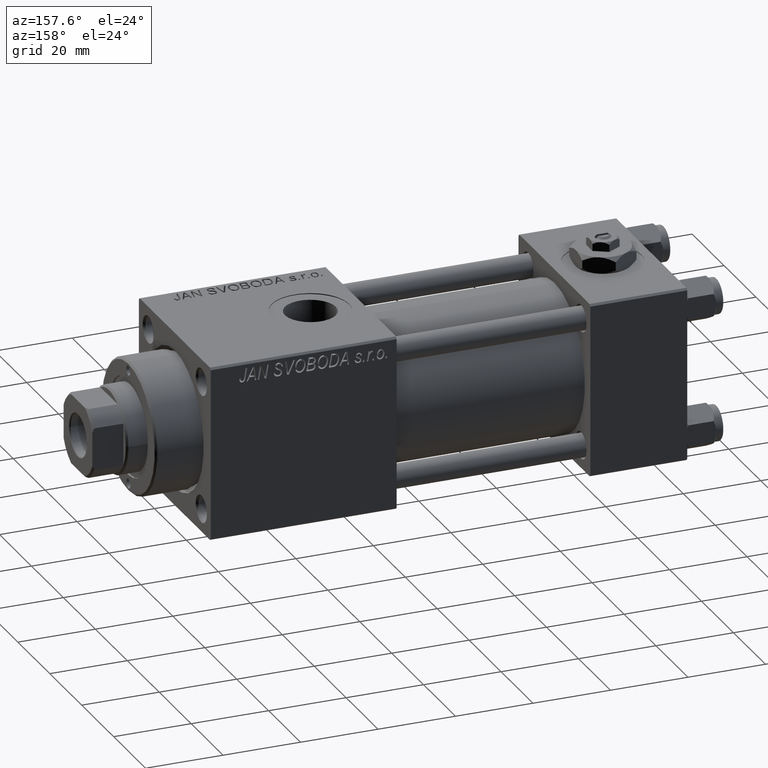
[diagram: clean part render]
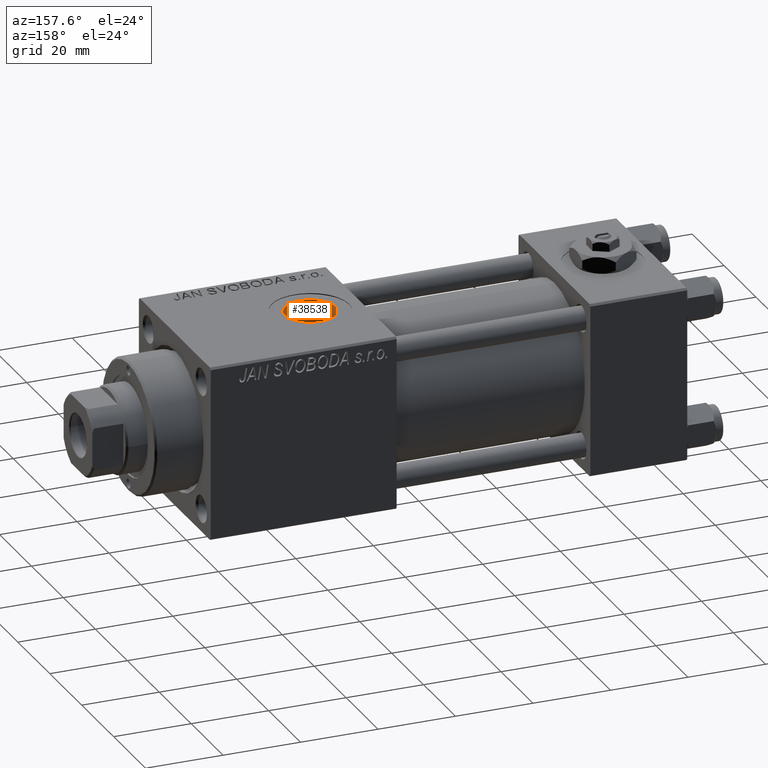
[diagram: same view with one face highlighted and labeled with its STEP entity id]
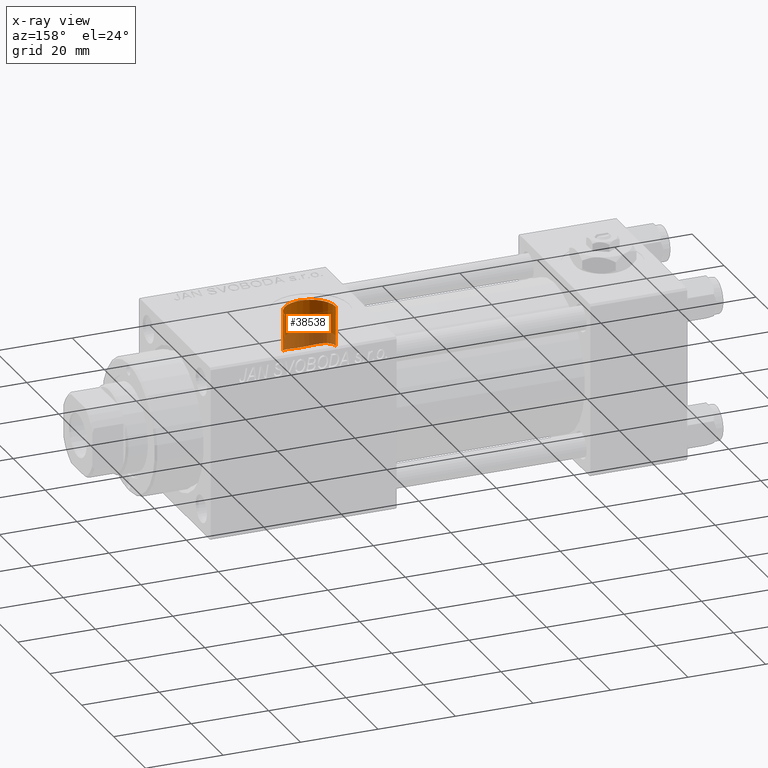
[diagram: x-ray of the same camera — body ghosted, the highlighted face saturated]
A machine part, auxiliary view. The second image highlights one B-rep face of the part: STEP entity #38538.
The next image is the same camera in x-ray: the body ghosted, the highlighted face saturated — about 34% of this face is hidden behind the body in this view.
In plain terms, the highlighted cylindrical surface (edge-blend (fillet) strip) has radius 6.58 mm, axis along (0, 0, -1).
Its self-contained STEP definition (entity closure, byte-faithful):
#121 = DIRECTION ( 'NONE',  ( -0.000000000000000000, -0.000000000000000000, -1.000000000000000000 ) ) ;
#256 = CARTESIAN_POINT ( 'NONE',  ( 82.90943709968694009, -4.173635198167837679, 11.25187747779291314 ) ) ;
#386 = CARTESIAN_POINT ( 'NONE',  ( 88.00000000000001421, -5.204170427930420494E-15, 22.29999999999999716 ) ) ;
#669 = EDGE_CURVE ( 'NONE', #24379, #868, #23022, .T. ) ;
#868 = VERTEX_POINT ( 'NONE', #34874 ) ;
#1574 = CARTESIAN_POINT ( 'NONE',  ( 81.41999999999998749, -0.3987589306235777564, 12.00000000000000178 ) ) ;
#1645 = DIRECTION ( 'NONE',  ( -0.000000000000000000, -0.000000000000000000, 1.000000000000000000 ) ) ;
#1870 = CARTESIAN_POINT ( 'NONE',  ( 88.00000000000001421, -5.204170427930420494E-15, 45.29999999999999005 ) ) ;
#2379 = CARTESIAN_POINT ( 'NONE',  ( 94.58000000000002672, -0.3226077776615777215, 16.50000000000000711 ) ) ;
#2876 = EDGE_CURVE ( 'NONE', #21275, #24994, #7051, .T. ) ;
#3436 = CARTESIAN_POINT ( 'NONE',  ( 84.48210468445526544, -5.574052804316229626, 10.62898043420413252 ) ) ;
#3694 = CARTESIAN_POINT ( 'NONE',  ( 81.71629779899160440, -1.962378304040151011, 11.84003675942547673 ) ) ;
#5157 = VERTEX_POINT ( 'NONE', #11108 ) ;
#5916 = CARTESIAN_POINT ( 'NONE',  ( 81.42000000000000171, 1.469576107744199801E-15, 12.00000000000000178 ) ) ;
#6423 = VECTOR ( 'NONE', #11288, 1000.000000000000000 ) ;
#7051 = LINE ( 'NONE', #23181, #6423 ) ;
#7247 = AXIS2_PLACEMENT_3D ( 'NONE', #1870, #18018, #21107 ) ;
#7404 = CARTESIAN_POINT ( 'NONE',  ( 85.52064445426731254, -6.098144367882026629, 10.33542248025770860 ) ) ;
#7667 = CARTESIAN_POINT ( 'NONE',  ( 82.15480420465904388, -3.046487603127518984, 11.61204766141661793 ) ) ;
#8195 = CARTESIAN_POINT ( 'NONE',  ( 85.16320872901937378, -5.940301670670843137, 10.42694291910975046 ) ) ;
#8328 = DIRECTION ( 'NONE',  ( 1.000000000000000000, 0.000000000000000000, 0.000000000000000000 ) ) ;
#8472 = CARTESIAN_POINT ( 'NONE',  ( 87.84379216343923247, -6.581218343749225319, 10.03432783490170976 ) ) ;
#9660 = EDGE_CURVE ( 'NONE', #35053, #21275, #14998, .T. ) ;
#9822 = CARTESIAN_POINT ( 'NONE',  ( 94.55609068154467423, -0.6453575044926712634, 16.49042383039745374 ) ) ;
#10076 = CARTESIAN_POINT ( 'NONE',  ( 94.30000000000001137, -1.899052395275089067, 16.39035081991840670 ) ) ;
#11087 = DIRECTION ( 'NONE',  ( 0.000000000000000000, 0.000000000000000000, -1.000000000000000000 ) ) ;
#11108 = CARTESIAN_POINT ( 'NONE',  ( 94.30000000000001137, -1.899052395275089067, 11.84878052796995718 ) ) ;
#11288 = DIRECTION ( 'NONE',  ( 0.000000000000000000, 0.000000000000000000, -1.000000000000000000 ) ) ;
#11631 = ORIENTED_EDGE ( 'NONE', *, *, #669, .T. ) ;
#11645 = CARTESIAN_POINT ( 'NONE',  ( 94.18477677513206459, -2.281298992827701877, 11.78751630630980607 ) ) ;
#11906 = CARTESIAN_POINT ( 'NONE',  ( 83.56113700165016667, -4.872522839515975868, 10.96952017908725630 ) ) ;
#12169 = CARTESIAN_POINT ( 'NONE',  ( 86.26571117503740993, -6.359577037598437954, 10.17731036340830997 ) ) ;
#12219 = EDGE_LOOP ( 'NONE', ( #34778, #42096, #11631, #44158, #39605, #33137 ) ) ;
#12436 = CARTESIAN_POINT ( 'NONE',  ( 88.63868773215152430, -6.560960036370746984, 10.04759214048445948 ) ) ;
#13339 = AXIS2_PLACEMENT_3D ( 'NONE', #386, #121, #8328 ) ;
#13490 = CARTESIAN_POINT ( 'NONE',  ( 81.56395315102130894, -1.383303317825534062, 11.92163510970724971 ) ) ;
#13754 = CARTESIAN_POINT ( 'NONE',  ( 81.45594931342614586, -0.7944237263419130501, 11.98017270223897235 ) ) ;
#13792 = FACE_OUTER_BOUND ( 'NONE', #12219, .T. ) ;
#14512 = CARTESIAN_POINT ( 'NONE',  ( 94.58000000000001251, 2.020172399822898567E-15, 16.50000000000000000 ) ) ;
#14998 = CIRCLE ( 'NONE', #13339, 6.580000000000002736 ) ;
#15354 = CARTESIAN_POINT ( 'NONE',  ( 82.78969099161481893, -4.023250467623474158, 11.30667168441424941 ) ) ;
#15607 = CARTESIAN_POINT ( 'NONE',  ( 90.36442671337263732, -6.143566170091887990, 10.30844919719950781 ) ) ;
#15868 = CARTESIAN_POINT ( 'NONE',  ( 93.47922161013028131, -3.663950190651517502, 11.43164576559327905 ) ) ;
#16135 = CARTESIAN_POINT ( 'NONE',  ( 86.64933611902864641, -6.452212448331274608, 10.11798947633288925 ) ) ;
#16402 = CARTESIAN_POINT ( 'NONE',  ( 94.30000000000001137, -1.899052395275089067, 11.84878052796995718 ) ) ;
#18018 = DIRECTION ( 'NONE',  ( 0.000000000000000000, 0.000000000000000000, -1.000000000000000000 ) ) ;
#18268 = CYLINDRICAL_SURFACE ( 'NONE', #7247, 6.580000000000002736 ) ;
#19274 = CARTESIAN_POINT ( 'NONE',  ( 94.58000000000001251, -4.398352834091461452E-15, 45.29999999999999005 ) ) ;
#19587 = CARTESIAN_POINT ( 'NONE',  ( 90.90036750558618905, -5.918981686858812985, 10.44010423036056778 ) ) ;
#19844 = CARTESIAN_POINT ( 'NONE',  ( 91.88529033867185092, -5.313933040936652752, 10.76007628214585132 ) ) ;
#20103 = CARTESIAN_POINT ( 'NONE',  ( 92.33470223076432148, -4.954109770454556028, 10.93054897555022542 ) ) ;
#20370 = CARTESIAN_POINT ( 'NONE',  ( 84.98945031834360009, -5.854084355677485974, 10.47573476137173643 ) ) ;
#20866 = EDGE_CURVE ( 'NONE', #35053, #24379, #47350, .T. ) ;
#21107 = DIRECTION ( 'NONE',  ( -1.000000000000000000, 0.000000000000000000, 0.000000000000000000 ) ) ;
#21275 = VERTEX_POINT ( 'NONE', #44873 ) ;
#21752 = CARTESIAN_POINT ( 'NONE',  ( 94.30000000000001137, -1.899052395275089067, 45.29999999999999005 ) ) ;
#23022 = B_SPLINE_CURVE_WITH_KNOTS ( 'NONE', 3,
 ( #42110, #2379, #9822, #25957, #46333, #10076 ),
 .UNSPECIFIED., .F., .F.,
 ( 4, 2, 4 ),
 ( 0.001922561461481083313, 0.002880296703329207012, 0.003838031945177331362 ),
 .UNSPECIFIED. ) ;
#23181 = CARTESIAN_POINT ( 'NONE',  ( 81.42000000000000171, -5.204170427930420494E-15, 45.29999999999999005 ) ) ;
#23800 = CARTESIAN_POINT ( 'NONE',  ( 81.98561383412463499, -2.697465198051460789, 11.69882456468388376 ) ) ;
#24065 = CARTESIAN_POINT ( 'NONE',  ( 92.75461516124364891, -4.564627351372486430, 11.10155823484087279 ) ) ;
#24379 = VERTEX_POINT ( 'NONE', #14512 ) ;
#24994 = VERTEX_POINT ( 'NONE', #5916 ) ;
#25957 = CARTESIAN_POINT ( 'NONE',  ( 94.46252323665211748, -1.278516620530523173, 16.45344826064652466 ) ) ;
#27897 = VECTOR ( 'NONE', #11087, 1000.000000000000000 ) ;
#28051 = CARTESIAN_POINT ( 'NONE',  ( 82.56220931812610786, -3.710026521228334317, 11.41328489595128914 ) ) ;
#30234 = LINE ( 'NONE', #21752, #33034 ) ;
#32300 = CARTESIAN_POINT ( 'NONE',  ( 89.61262682924856904, -6.382418177023039263, 10.16205234327171070 ) ) ;
#32568 = CARTESIAN_POINT ( 'NONE',  ( 91.72673468970526756, -5.426328151739157946, 10.70368258044636356 ) ) ;
#33034 = VECTOR ( 'NONE', #1645, 1000.000000000000000 ) ;
#33137 = ORIENTED_EDGE ( 'NONE', *, *, #2876, .F. ) ;
#34233 = CARTESIAN_POINT ( 'NONE',  ( 94.58000000000001251, -4.398352834091461452E-15, 22.29999999999999716 ) ) ;
#34778 = ORIENTED_EDGE ( 'NONE', *, *, #9660, .F. ) ;
#34874 = CARTESIAN_POINT ( 'NONE',  ( 94.30000000000001137, -1.899052395275089067, 16.39035081991840670 ) ) ;
#35053 = VERTEX_POINT ( 'NONE', #34233 ) ;
#35744 = CARTESIAN_POINT ( 'NONE',  ( 93.68578075181308407, -3.334439790209559717, 11.53293512199652149 ) ) ;
#36260 = CARTESIAN_POINT ( 'NONE',  ( 92.18893691967821269, -5.078008749725831272, 10.87340577274958164 ) ) ;
#36337 = B_SPLINE_CURVE_WITH_KNOTS ( 'NONE', 3,
 ( #16402, #11645, #52130, #35744, #15868, #48168, #24065, #20103, #36260, #19844, #32568, #39703, #19587, #15607, #52393, #43934, #32300, #40224, #12436, #48433, #8472, #40489, #40754, #16135, #12169, #43672, #7404, #8195, #20370, #3436, #51618, #11906, #36526, #256, #15354, #28051, #51874, #7667, #23800, #39969, #3694, #50022, #13490, #13754, #1574, #49229 ),
 .UNSPECIFIED., .F., .F.,
 ( 4, 2, 2, 2, 2, 2, 2, 2, 2, 2, 2, 2, 2, 2, 2, 2, 2, 2, 2, 2, 2, 2, 4 ),
 ( 0.000000000000000000, 0.001192670592735514809, 0.002385341185471029617, 0.003578011778206543776, 0.004174347074574301722, 0.004770682370942059235, 0.005963352963677574260, 0.006559688260045349988, 0.007156023556413125715, 0.008348694149148638138, 0.008945029445516394784, 0.009541364741884149694, 0.01073403533461966125, 0.01133037063098741790, 0.01192670592735517281, 0.01311937652009071906, 0.01431204711282626531, 0.01490838240919403930, 0.01550471770556181503, 0.01669738829829738036, 0.01729372359466516823, 0.01789005889103295263, 0.01908272948376852837 ),
 .UNSPECIFIED. ) ;
#36526 = CARTESIAN_POINT ( 'NONE',  ( 83.28639562774002059, -4.607057570676570180, 11.08471608617320392 ) ) ;
#38538 = ADVANCED_FACE ( 'NONE', ( #13792 ), #18268, .F. ) ;
#39605 = ORIENTED_EDGE ( 'NONE', *, *, #47828, .T. ) ;
#39703 = CARTESIAN_POINT ( 'NONE',  ( 91.24045236004087656, -5.739740685217730842, 10.54091119589231518 ) ) ;
#39969 = CARTESIAN_POINT ( 'NONE',  ( 81.77783752250837779, -2.149251954852693824, 11.80743069880358753 ) ) ;
#40224 = CARTESIAN_POINT ( 'NONE',  ( 89.03095050380548514, -6.510856269794945916, 10.08062642345327120 ) ) ;
#40489 = CARTESIAN_POINT ( 'NONE',  ( 87.44221154047806976, -6.559398433601089984, 10.04860498654694823 ) ) ;
#40754 = CARTESIAN_POINT ( 'NONE',  ( 87.24099402833643069, -6.539116494941770164, 10.06186586056366750 ) ) ;
#42096 = ORIENTED_EDGE ( 'NONE', *, *, #20866, .T. ) ;
#42110 = CARTESIAN_POINT ( 'NONE',  ( 94.58000000000001251, 2.020172399822898567E-15, 16.50000000000000000 ) ) ;
#43672 = CARTESIAN_POINT ( 'NONE',  ( 85.70524222956265703, -6.170038997559282201, 10.29252570320665150 ) ) ;
#43934 = CARTESIAN_POINT ( 'NONE',  ( 89.80612331289052008, -6.330331454284490178, 10.19469476613940273 ) ) ;
#44158 = ORIENTED_EDGE ( 'NONE', *, *, #50184, .F. ) ;
#44873 = CARTESIAN_POINT ( 'NONE',  ( 81.42000000000000171, -5.204170427930420494E-15, 22.29999999999999716 ) ) ;
#46333 = CARTESIAN_POINT ( 'NONE',  ( 94.39288924062448416, -1.590897540048193504, 16.42605488887726395 ) ) ;
#47350 = LINE ( 'NONE', #19274, #27897 ) ;
#47828 = EDGE_CURVE ( 'NONE', #5157, #24994, #36337, .T. ) ;
#48168 = CARTESIAN_POINT ( 'NONE',  ( 93.01155594446152008, -4.281437546902500557, 11.21500550341173863 ) ) ;
#48433 = CARTESIAN_POINT ( 'NONE',  ( 88.04338309676340657, -6.582852539851475449, 10.03325114525026862 ) ) ;
#49229 = CARTESIAN_POINT ( 'NONE',  ( 81.42000000000000171, 1.469576107744199801E-15, 12.00000000000000178 ) ) ;
#50022 = CARTESIAN_POINT ( 'NONE',  ( 81.60938533297500896, -1.579837376672096338, 11.89712204425859454 ) ) ;
#50184 = EDGE_CURVE ( 'NONE', #5157, #868, #30234, .T. ) ;
#51618 = CARTESIAN_POINT ( 'NONE',  ( 84.16042478392878934, -5.357485016297855118, 10.74100582260112979 ) ) ;
#51874 = CARTESIAN_POINT ( 'NONE',  ( 82.45420827143600206, -3.546596150375938006, 11.46524487954329530 ) ) ;
#52130 = CARTESIAN_POINT ( 'NONE',  ( 94.03789257063225193, -2.643944927135372325, 11.71053527662117055 ) ) ;
#52393 = CARTESIAN_POINT ( 'NONE',  ( 90.18144946988459765, -6.210994763547172504, 10.26783529976223264 ) ) ;